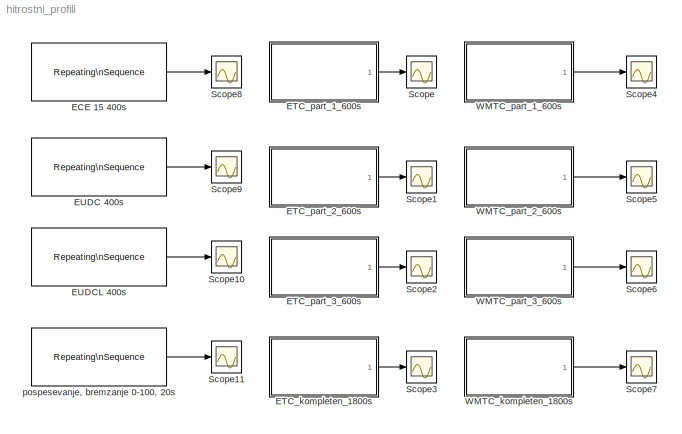
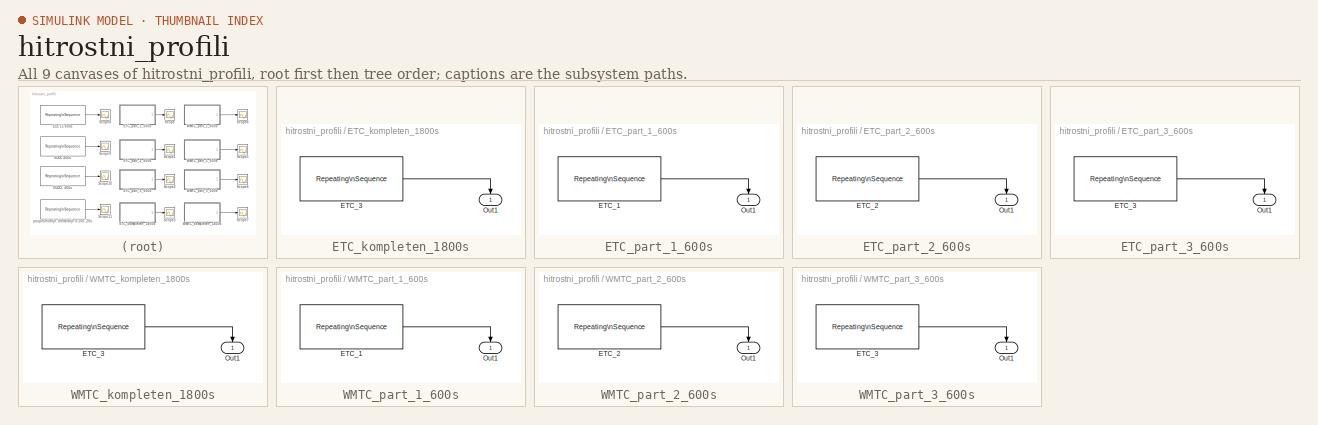
[diagram: thumbnail index - all 9 canvases of the model, root first then tree order]
MODEL hitrostni_profili
KIND model
BLOCK [Reference] ECE 15 400s  REF=simulink/Sources/Repeating\nSequence
  Ports = [0, 1]
  SID = 1
  SourceBlock = simulink/Sources/Repeating\nSequence
  SourceType = Repeating table
  rep_seq_t = [0.0 11.3 15.0 23.2 28.2 48.9 60.8 85.2 95.9 117.2 142.8 154.8 162.9 176.0 188.0 200.0]
  rep_seq_y = [0.0 0.0 5.0 5.0 0.0 0.0 32.0 32.0 0.0 0.0 50.0 50.0 35.0 35.0 0.0 0.0]
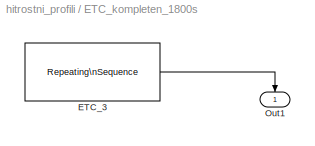
BLOCK [SubSystem] ETC_kompleten_1800s
  FunctionWithSeparateData = off
  InitFcn = load('ETC_full.mat')
  MaskHideContents = off
  MinAlgLoopOccurrences = off
  Opaque = off
  Ports = [0, 1]
  PropExecContextOutsideSubsystem = off
  RTWSystemCode = Auto
  RequestExecContextInheritance = off
  SID = 14
BLOCK [Reference] ETC_kompleten_1800s/ETC_3  REF=simulink/Sources/Repeating\nSequence
  Ports = [0, 1]
  SID = 15
  SourceBlock = simulink/Sources/Repeating\nSequence
  SourceType = Repeating table
  rep_seq_t = [ETC_time]
  rep_seq_y = [ETC_speed]
BLOCK [Outport] ETC_kompleten_1800s/Out1
  IconDisplay = Port number
  SID = 16
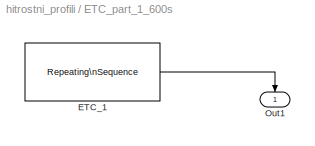
BLOCK [SubSystem] ETC_part_1_600s
  FunctionWithSeparateData = off
  InitFcn = load('ETC_part_1.mat')
  MaskHideContents = off
  MinAlgLoopOccurrences = off
  Opaque = off
  Ports = [0, 1]
  PropExecContextOutsideSubsystem = off
  RTWSystemCode = Auto
  RequestExecContextInheritance = off
  SID = 6
BLOCK [Reference] ETC_part_1_600s/ETC_1  REF=simulink/Sources/Repeating\nSequence
  Ports = [0, 1]
  SID = 5
  SourceBlock = simulink/Sources/Repeating\nSequence
  SourceType = Repeating table
  rep_seq_t = ETC_1_time
  rep_seq_y = ETC_1_speed
BLOCK [Outport] ETC_part_1_600s/Out1
  IconDisplay = Port number
  SID = 7
BLOCK [SubSystem] ETC_part_2_600s
  FunctionWithSeparateData = off
  InitFcn = load('ETC_part_2.mat')
  MaskHideContents = off
  MinAlgLoopOccurrences = off
  Opaque = off
  Ports = [0, 1]
  PropExecContextOutsideSubsystem = off
  RTWSystemCode = Auto
  RequestExecContextInheritance = off
  SID = 8
BLOCK [Reference] ETC_part_2_600s/ETC_2  REF=simulink/Sources/Repeating\nSequence
  Ports = [0, 1]
  SID = 9
  SourceBlock = simulink/Sources/Repeating\nSequence
  SourceType = Repeating table
  rep_seq_t = ETC_2_time
  rep_seq_y = ETC_2_speed
BLOCK [Outport] ETC_part_2_600s/Out1
  IconDisplay = Port number
  SID = 10
BLOCK [SubSystem] ETC_part_3_600s
  FunctionWithSeparateData = off
  InitFcn = load('ETC_part_3.mat')
  MaskHideContents = off
  MinAlgLoopOccurrences = off
  Opaque = off
  Ports = [0, 1]
  PropExecContextOutsideSubsystem = off
  RTWSystemCode = Auto
  RequestExecContextInheritance = off
  SID = 11
BLOCK [Reference] ETC_part_3_600s/ETC_3  REF=simulink/Sources/Repeating\nSequence
  Ports = [0, 1]
  SID = 12
  SourceBlock = simulink/Sources/Repeating\nSequence
  SourceType = Repeating table
  rep_seq_t = ETC_3_time
  rep_seq_y = ETC_3_speed
BLOCK [Outport] ETC_part_3_600s/Out1
  IconDisplay = Port number
  SID = 13
BLOCK [Reference] EUDC 400s  REF=simulink/Sources/Repeating\nSequence
  Ports = [0, 1]
  SID = 2
  SourceBlock = simulink/Sources/Repeating\nSequence
  SourceType = Repeating table
  rep_seq_t = [0.0 20.5128 24.359 30.7692 34.6154 43.5897 60.2564 111.538 115.385 119.231 188.462 193.59 194.872 200.0 250.0 284.615 315.385 334.615 346.154 364.103 371.795 379.487 400.0]
  rep_seq_y = [0.0 0.0 7.0 19.0 26.0 42.0 70.0 70.0 58.2775 50.0 50.0 58.2775 60.9569 70.0 70.0 100.0 100.0 120.0 120.0 71.0048 37.512 0.0 0.0]
BLOCK [Reference] EUDCL 400s  REF=simulink/Sources/Repeating\nSequence
  Ports = [0, 1]
  SID = 3
  SourceBlock = simulink/Sources/Repeating\nSequence
  SourceType = Repeating table
  rep_seq_t = [    0.00000000000000e+000\n    20.5128000000000e+000\n    23.0769000000000e+000\n    28.2051000000000e+000\n    35.8974000000000e+000\n    46.1538000000000e+000\n    61.5385000000000e+000\n    111.538000000000e+000\n    115.385000000000e+000\n    119.231000000000e+000\n    188.462000000000e+000\n    193.590000000000e+000\n    201.282000000000e+000\n    251.282000000000e+000\n    274.359000000000e...<+113ch>
  rep_seq_y = [    0.00000000000000e+000\n    0.00000000000000e+000\n    11.0048000000000e+000\n    18.6603000000000e+000\n    34.9282000000000e+000\n    49.7608000000000e+000\n    70.0000000000000e+000\n    70.0000000000000e+000\n    59.3301000000000e+000\n    50.0000000000000e+000\n    50.0000000000000e+000\n    60.2871000000000e+000\n    70.0000000000000e+000\n    70.0000000000000e+000\n    90.0000000000000e...<+113ch>
BLOCK [Scope] Scope
  DataFormat = StructureWithTime
  Floating = off
  NumInputPorts = 1
  Ports = [1]
  SID = 29
  SampleTime = 0
  ShowLegends = off
BLOCK [Scope] Scope1
  DataFormat = StructureWithTime
  Floating = off
  NumInputPorts = 1
  Ports = [1]
  SID = 30
  SampleTime = 0
  SaveName = ScopeData1
  ShowLegends = off
  ZoomMode = xonly
BLOCK [Scope] Scope10
  DataFormat = StructureWithTime
  Floating = off
  NumInputPorts = 1
  Ports = [1]
  SID = 39
  SampleTime = 0
  SaveName = ScopeData10
  ShowLegends = off
BLOCK [Scope] Scope11
  DataFormat = StructureWithTime
  Floating = off
  NumInputPorts = 1
  Ports = [1]
  SID = 40
  SampleTime = 0
  SaveName = ScopeData11
  ShowLegends = off
BLOCK [Scope] Scope2
  DataFormat = StructureWithTime
  Floating = off
  NumInputPorts = 1
  Ports = [1]
  SID = 31
  SampleTime = 0
  SaveName = ScopeData2
  ShowLegends = off
  ZoomMode = xonly
BLOCK [Scope] Scope3
  DataFormat = StructureWithTime
  Floating = off
  NumInputPorts = 1
  Ports = [1]
  SID = 32
  SampleTime = 0
  SaveName = ScopeData3
  ShowLegends = off
BLOCK [Scope] Scope4
  DataFormat = StructureWithTime
  Floating = off
  NumInputPorts = 1
  Ports = [1]
  SID = 33
  SampleTime = 0
  SaveName = ScopeData4
  ShowLegends = off
BLOCK [Scope] Scope5
  DataFormat = StructureWithTime
  Floating = off
  NumInputPorts = 1
  Ports = [1]
  SID = 34
  SampleTime = 0
  SaveName = ScopeData5
  ShowLegends = off
BLOCK [Scope] Scope6
  DataFormat = StructureWithTime
  Floating = off
  NumInputPorts = 1
  Ports = [1]
  SID = 35
  SampleTime = 0
  SaveName = ScopeData6
  ShowLegends = off
  ZoomMode = xonly
BLOCK [Scope] Scope7
  DataFormat = StructureWithTime
  Floating = off
  NumInputPorts = 1
  Ports = [1]
  SID = 36
  SampleTime = 0
  SaveName = ScopeData7
  ShowLegends = off
BLOCK [Scope] Scope8
  DataFormat = StructureWithTime
  Floating = off
  NumInputPorts = 1
  Ports = [1]
  SID = 37
  SampleTime = 0
  SaveName = ScopeData8
  ShowLegends = off
BLOCK [Scope] Scope9
  DataFormat = StructureWithTime
  Floating = off
  NumInputPorts = 1
  Ports = [1]
  SID = 38
  SampleTime = 0
  SaveName = ScopeData9
  ShowLegends = off
BLOCK [SubSystem] WMTC_kompleten_1800s
  FunctionWithSeparateData = off
  InitFcn = load('WMTC_full.mat')
  MaskHideContents = off
  MinAlgLoopOccurrences = off
  Opaque = off
  Ports = [0, 1]
  PropExecContextOutsideSubsystem = off
  RTWSystemCode = Auto
  RequestExecContextInheritance = off
  SID = 17
BLOCK [Reference] WMTC_kompleten_1800s/ETC_3  REF=simulink/Sources/Repeating\nSequence
  Ports = [0, 1]
  SID = 18
  SourceBlock = simulink/Sources/Repeating\nSequence
  SourceType = Repeating table
  rep_seq_t = [WMTC_time]
  rep_seq_y = [WMTC_speed]
BLOCK [Outport] WMTC_kompleten_1800s/Out1
  IconDisplay = Port number
  SID = 19
BLOCK [SubSystem] WMTC_part_1_600s
  FunctionWithSeparateData = off
  InitFcn = load('WMTC_part_1.mat')
  MaskHideContents = off
  MinAlgLoopOccurrences = off
  Opaque = off
  Ports = [0, 1]
  PropExecContextOutsideSubsystem = off
  RTWSystemCode = Auto
  RequestExecContextInheritance = off
  SID = 20
BLOCK [Reference] WMTC_part_1_600s/ETC_1  REF=simulink/Sources/Repeating\nSequence
  Ports = [0, 1]
  SID = 21
  SourceBlock = simulink/Sources/Repeating\nSequence
  SourceType = Repeating table
  rep_seq_t = WMTC_1_time
  rep_seq_y = WMTC_1_speed
BLOCK [Outport] WMTC_part_1_600s/Out1
  IconDisplay = Port number
  SID = 22
BLOCK [SubSystem] WMTC_part_2_600s
  FunctionWithSeparateData = off
  InitFcn = load('WMTC_part_2.mat')
  MaskHideContents = off
  MinAlgLoopOccurrences = off
  Opaque = off
  Ports = [0, 1]
  PropExecContextOutsideSubsystem = off
  RTWSystemCode = Auto
  RequestExecContextInheritance = off
  SID = 23
BLOCK [Reference] WMTC_part_2_600s/ETC_2  REF=simulink/Sources/Repeating\nSequence
  Ports = [0, 1]
  SID = 24
  SourceBlock = simulink/Sources/Repeating\nSequence
  SourceType = Repeating table
  rep_seq_t = WMTC_2_time
  rep_seq_y = WMTC_2_speed
BLOCK [Outport] WMTC_part_2_600s/Out1
  IconDisplay = Port number
  SID = 25
BLOCK [SubSystem] WMTC_part_3_600s
  FunctionWithSeparateData = off
  InitFcn = load('WMTC_part_3.mat')
  MaskHideContents = off
  MinAlgLoopOccurrences = off
  Opaque = off
  Ports = [0, 1]
  PropExecContextOutsideSubsystem = off
  RTWSystemCode = Auto
  RequestExecContextInheritance = off
  SID = 26
BLOCK [Reference] WMTC_part_3_600s/ETC_3  REF=simulink/Sources/Repeating\nSequence
  Ports = [0, 1]
  SID = 27
  SourceBlock = simulink/Sources/Repeating\nSequence
  SourceType = Repeating table
  rep_seq_t = WMTC_3_time
  rep_seq_y = WMTC_3_speed
BLOCK [Outport] WMTC_part_3_600s/Out1
  IconDisplay = Port number
  SID = 28
BLOCK [Reference] pospesevanje, bremzanje 0-100, 20s  REF=simulink/Sources/Repeating\nSequence
  Ports = [0, 1]
  SID = 4
  SourceBlock = simulink/Sources/Repeating\nSequence
  SourceType = Repeating table
  rep_seq_t = [0 1 11 15 17 20]
  rep_seq_y = [0 0 100 100 0 0]
LINE ECE 15 400s:1 -> Scope8:1
LINE ETC_kompleten_1800s/ETC_3:1 -> ETC_kompleten_1800s/Out1:1
LINE ETC_kompleten_1800s:1 -> Scope3:1
LINE ETC_part_1_600s/ETC_1:1 -> ETC_part_1_600s/Out1:1
LINE ETC_part_1_600s:1 -> Scope:1
LINE ETC_part_2_600s/ETC_2:1 -> ETC_part_2_600s/Out1:1
LINE ETC_part_2_600s:1 -> Scope1:1
LINE ETC_part_3_600s/ETC_3:1 -> ETC_part_3_600s/Out1:1
LINE ETC_part_3_600s:1 -> Scope2:1
LINE EUDC 400s:1 -> Scope9:1
LINE EUDCL 400s:1 -> Scope10:1
LINE WMTC_kompleten_1800s/ETC_3:1 -> WMTC_kompleten_1800s/Out1:1
LINE WMTC_kompleten_1800s:1 -> Scope7:1
LINE WMTC_part_1_600s/ETC_1:1 -> WMTC_part_1_600s/Out1:1
LINE WMTC_part_1_600s:1 -> Scope4:1
LINE WMTC_part_2_600s/ETC_2:1 -> WMTC_part_2_600s/Out1:1
LINE WMTC_part_2_600s:1 -> Scope5:1
LINE WMTC_part_3_600s/ETC_3:1 -> WMTC_part_3_600s/Out1:1
LINE WMTC_part_3_600s:1 -> Scope6:1
LINE pospesevanje, bremzanje 0-100, 20s:1 -> Scope11:1
